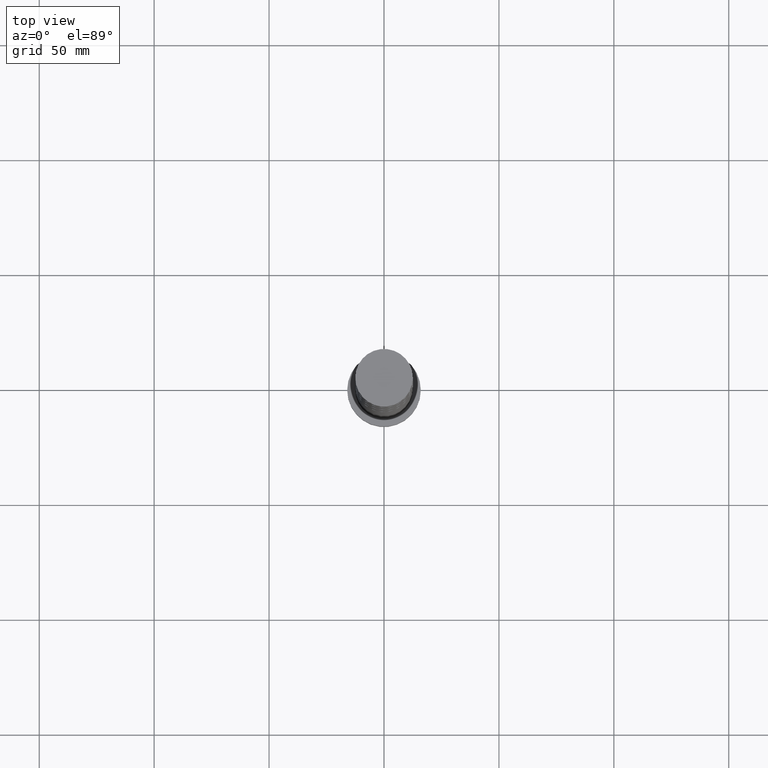
[diagram: clean part render]
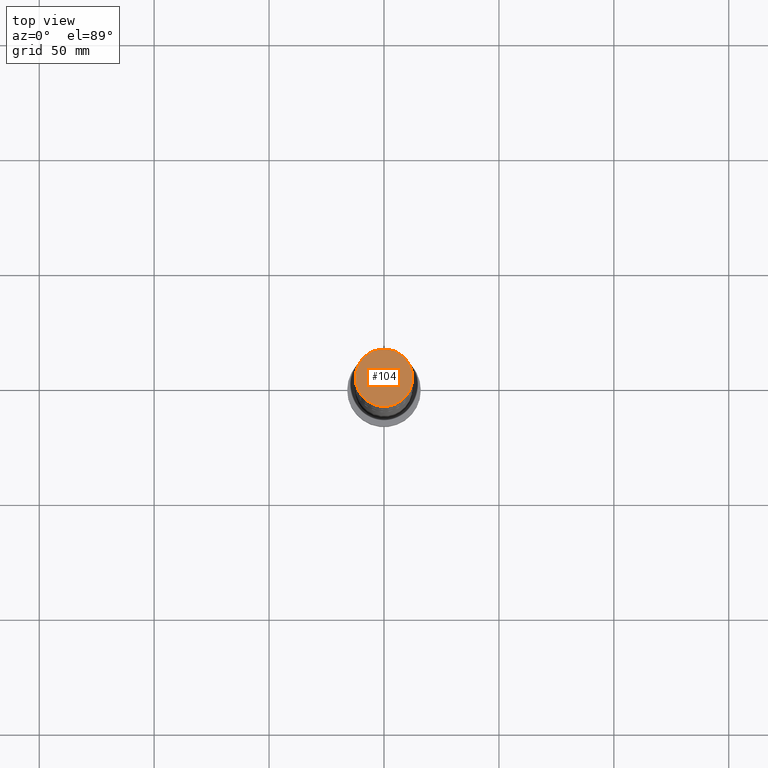
[diagram: same view with one face highlighted and labeled with its STEP entity id]
A machine part, top view. The second image highlights one B-rep face of the part: STEP entity #104.
In plain terms, the highlighted planar face has unit normal (0, 0, 1).
Its self-contained STEP definition (entity closure, byte-faithful):
#33 = CARTESIAN_POINT ( 'NONE',  ( 0.000000000000000000, 0.000000000000000000, 315.0000000000000000 ) ) ;
#86 = DIRECTION ( 'NONE',  ( 0.000000000000000000, 0.000000000000000000, 1.000000000000000000 ) ) ;
#104 = ADVANCED_FACE ( 'NONE', ( #192 ), #1386, .T. ) ;
#183 = EDGE_CURVE ( 'NONE', #1255, #1126, #748, .T. ) ;
#192 = FACE_OUTER_BOUND ( 'NONE', #770, .T. ) ;
#247 = AXIS2_PLACEMENT_3D ( 'NONE', #778, #931, #807 ) ;
#393 = DIRECTION ( 'NONE',  ( 1.000000000000000000, 0.000000000000000000, 0.000000000000000000 ) ) ;
#460 = CARTESIAN_POINT ( 'NONE',  ( -12.50000000000000000, 0.000000000000000000, 315.0000000000000000 ) ) ;
#619 = AXIS2_PLACEMENT_3D ( 'NONE', #33, #1841, #889 ) ;
#691 = ORIENTED_EDGE ( 'NONE', *, *, #1076, .T. ) ;
#708 = ORIENTED_EDGE ( 'NONE', *, *, #183, .T. ) ;
#748 = CIRCLE ( 'NONE', #619, 12.50000000000000000 ) ;
#770 = EDGE_LOOP ( 'NONE', ( #708, #691 ) ) ;
#778 = CARTESIAN_POINT ( 'NONE',  ( 0.000000000000000000, 0.000000000000000000, 315.0000000000000000 ) ) ;
#807 = DIRECTION ( 'NONE',  ( 1.000000000000000000, 0.000000000000000000, -0.000000000000000000 ) ) ;
#889 = DIRECTION ( 'NONE',  ( 1.000000000000000000, 0.000000000000000000, 0.000000000000000000 ) ) ;
#931 = DIRECTION ( 'NONE',  ( 0.000000000000000000, 0.000000000000000000, 1.000000000000000000 ) ) ;
#1032 = CARTESIAN_POINT ( 'NONE',  ( 12.50000000000000000, 1.530808498934191521E-15, 315.0000000000000000 ) ) ;
#1076 = EDGE_CURVE ( 'NONE', #1126, #1255, #1342, .T. ) ;
#1126 = VERTEX_POINT ( 'NONE', #1032 ) ;
#1255 = VERTEX_POINT ( 'NONE', #460 ) ;
#1290 = CARTESIAN_POINT ( 'NONE',  ( 0.000000000000000000, 0.000000000000000000, 315.0000000000000000 ) ) ;
#1342 = CIRCLE ( 'NONE', #1467, 12.50000000000000000 ) ;
#1386 = PLANE ( 'NONE',  #247 ) ;
#1467 = AXIS2_PLACEMENT_3D ( 'NONE', #1290, #86, #393 ) ;
#1841 = DIRECTION ( 'NONE',  ( 0.000000000000000000, 0.000000000000000000, 1.000000000000000000 ) ) ;